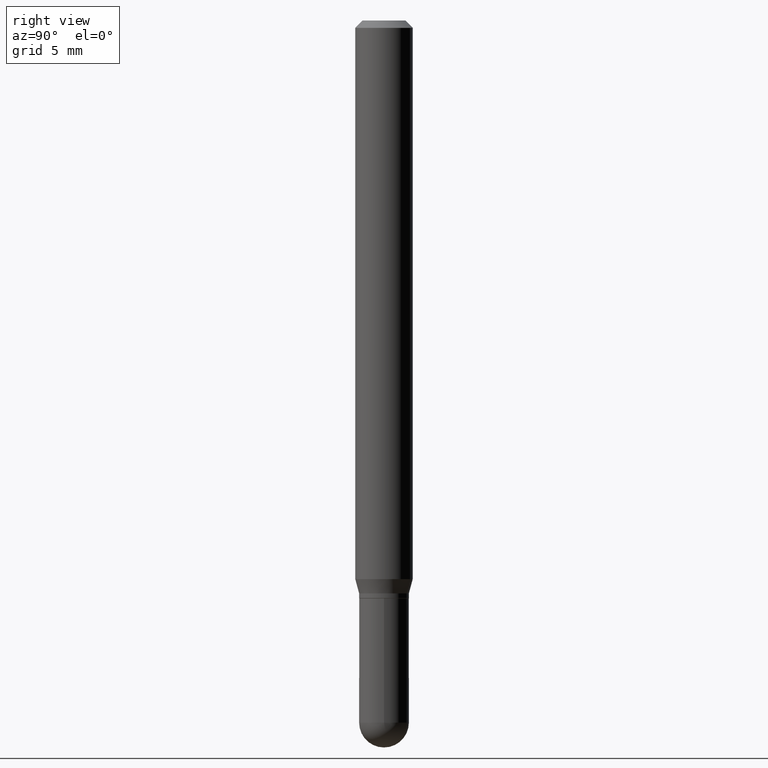
[diagram: clean part render]
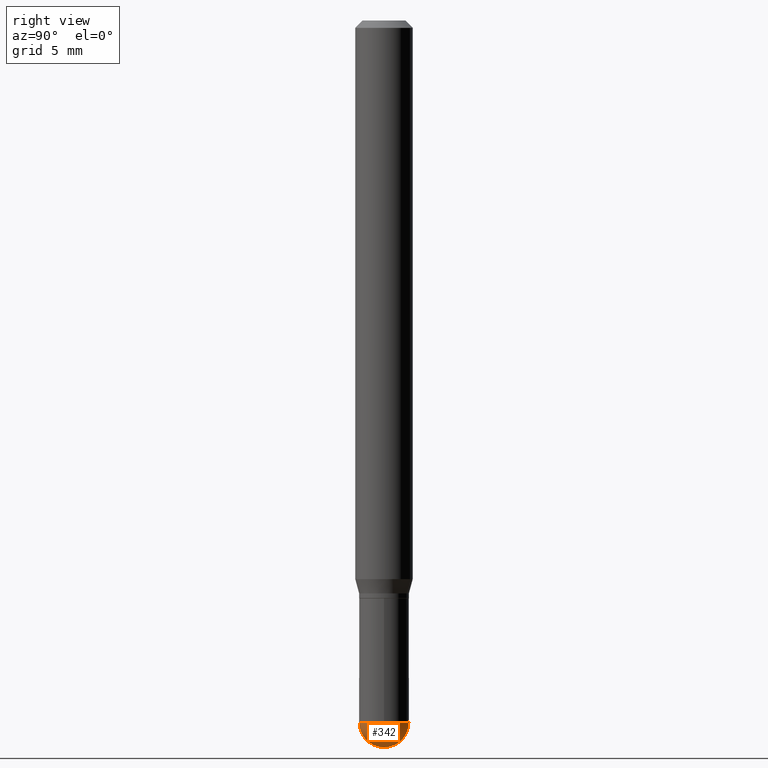
[diagram: same view with one face highlighted and labeled with its STEP entity id]
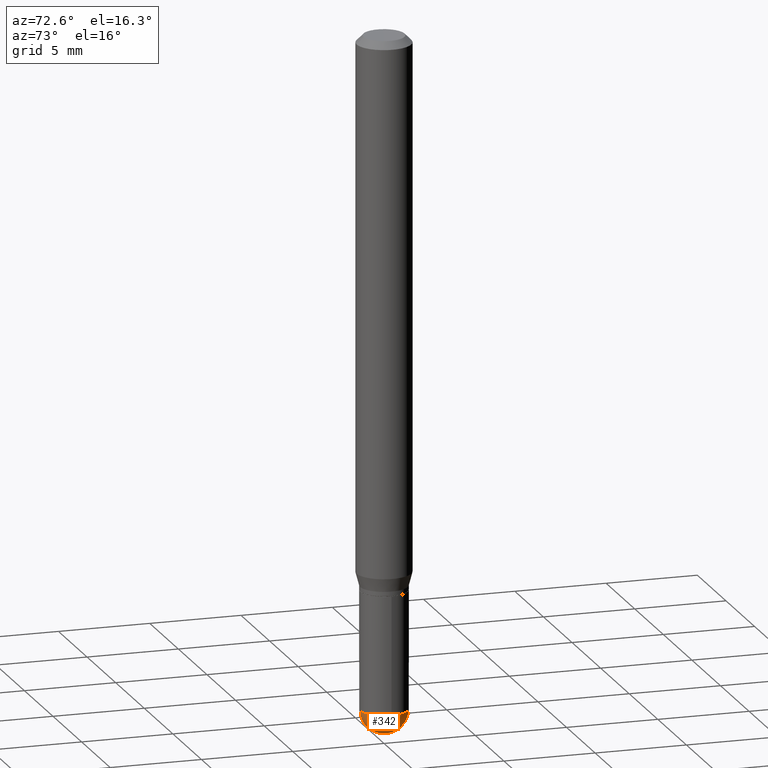
[diagram: same view with one face highlighted and labeled with its STEP entity id]
A machine part, right view. The second image highlights one B-rep face of the part: STEP entity #342.
A second angle (auxiliary view) of the same face is appended — the face is thin or edge-on in the first view.
In plain terms, the highlighted spherical surface has radius 1.3005 mm.
Its self-contained STEP definition (entity closure, byte-faithful):
#18 = AXIS2_PLACEMENT_3D ( 'NONE', #499, #140, #292 ) ;
#26 = ORIENTED_EDGE ( 'NONE', *, *, #115, .F. ) ;
#30 = FACE_OUTER_BOUND ( 'NONE', #341, .T. ) ;
#34 = CARTESIAN_POINT ( 'NONE',  ( 3.652098203832684976E-29, -5.233010518460681627E-15, -1.496099999999999985 ) ) ;
#47 = CARTESIAN_POINT ( 'NONE',  ( 3.637978807092061704E-16, 0.05119999999999488155, -1.444899999999999851 ) ) ;
#60 = DIRECTION ( 'NONE',  ( 1.000000000000000000, -6.982962677686263555E-15, 0.000000000000000000 ) ) ;
#69 = ORIENTED_EDGE ( 'NONE', *, *, #138, .F. ) ;
#83 = VERTEX_POINT ( 'NONE', #418 ) ;
#94 = AXIS2_PLACEMENT_3D ( 'NONE', #413, #106, #379 ) ;
#103 = EDGE_CURVE ( 'NONE', #154, #395, #441, .T. ) ;
#106 = DIRECTION ( 'NONE',  ( -2.445468806185136597E-29, 3.491481338843145583E-15, 1.000000000000000000 ) ) ;
#115 = EDGE_CURVE ( 'NONE', #215, #83, #216, .T. ) ;
#138 = EDGE_CURVE ( 'NONE', #154, #215, #274, .T. ) ;
#140 = DIRECTION ( 'NONE',  ( 1.000000000000000000, -6.982962677686265922E-15, 4.883557194083112340E-29 ) ) ;
#154 = VERTEX_POINT ( 'NONE', #34 ) ;
#177 = DIRECTION ( 'NONE',  ( 1.000000000000000000, -7.105427357601001070E-15, 4.926315508542082329E-29 ) ) ;
#181 = AXIS2_PLACEMENT_3D ( 'NONE', #449, #243, #60 ) ;
#215 = VERTEX_POINT ( 'NONE', #239 ) ;
#216 = CIRCLE ( 'NONE', #94, 0.05120000000000000939 ) ;
#224 = CARTESIAN_POINT ( 'NONE',  ( 3.529079426656305644E-29, -5.051111578106095503E-15, -1.444899999999999851 ) ) ;
#239 = CARTESIAN_POINT ( 'NONE',  ( -3.575276890975010539E-16, -0.05120000000000499152, -1.444899999999999407 ) ) ;
#243 = DIRECTION ( 'NONE',  ( -2.445468806185136597E-29, 3.491481338843145583E-15, 1.000000000000000000 ) ) ;
#274 = CIRCLE ( 'NONE', #344, 0.05119999999999987061 ) ;
#292 = DIRECTION ( 'NONE',  ( -6.982962677686265922E-15, -1.000000000000000000, 5.335640612625527836E-15 ) ) ;
#300 = AXIS2_PLACEMENT_3D ( 'NONE', #224, #177, #462 ) ;
#335 = EDGE_CURVE ( 'NONE', #83, #395, #415, .T. ) ;
#336 = CARTESIAN_POINT ( 'NONE',  ( 3.529079426656305644E-29, -5.051111578106095503E-15, -1.444899999999999851 ) ) ;
#341 = EDGE_LOOP ( 'NONE', ( #69, #496, #397, #26 ) ) ;
#342 = ADVANCED_FACE ( 'NONE', ( #30 ), #508, .T. ) ;
#344 = AXIS2_PLACEMENT_3D ( 'NONE', #336, #420, #502 ) ;
#379 = DIRECTION ( 'NONE',  ( 1.000000000000000000, -6.982962677686263555E-15, 0.000000000000000000 ) ) ;
#395 = VERTEX_POINT ( 'NONE', #47 ) ;
#397 = ORIENTED_EDGE ( 'NONE', *, *, #335, .F. ) ;
#413 = CARTESIAN_POINT ( 'NONE',  ( 3.533457878056902611E-29, -5.044841386494460595E-15, -1.444899999999999629 ) ) ;
#415 = CIRCLE ( 'NONE', #181, 0.05120000000000000939 ) ;
#418 = CARTESIAN_POINT ( 'NONE',  ( 0.05120000000000000939, -4.955634038287017424E-15, -1.444899999999999629 ) ) ;
#420 = DIRECTION ( 'NONE',  ( -1.000000000000000000, 6.982962677686265922E-15, -4.883557194083112340E-29 ) ) ;
#441 = CIRCLE ( 'NONE', #300, 0.05119999999999987061 ) ;
#449 = CARTESIAN_POINT ( 'NONE',  ( 3.533457878056902611E-29, -5.044841386494460595E-15, -1.444899999999999629 ) ) ;
#462 = DIRECTION ( 'NONE',  ( 7.105427357601001070E-15, 1.000000000000000000, 0.000000000000000000 ) ) ;
#496 = ORIENTED_EDGE ( 'NONE', *, *, #103, .T. ) ;
#499 = CARTESIAN_POINT ( 'NONE',  ( 3.529079426656305644E-29, -5.051111578106095503E-15, -1.444899999999999851 ) ) ;
#502 = DIRECTION ( 'NONE',  ( -6.982962677686265922E-15, -1.000000000000000000, 0.000000000000000000 ) ) ;
#508 = SPHERICAL_SURFACE ( 'NONE', #18, 0.05119999999999987061 ) ;